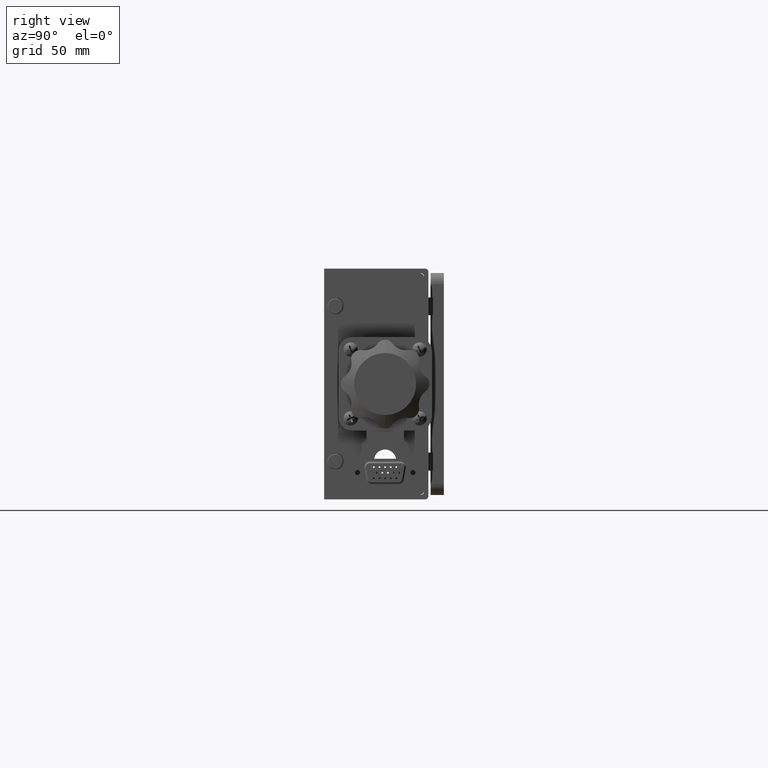
[diagram: clean part render]
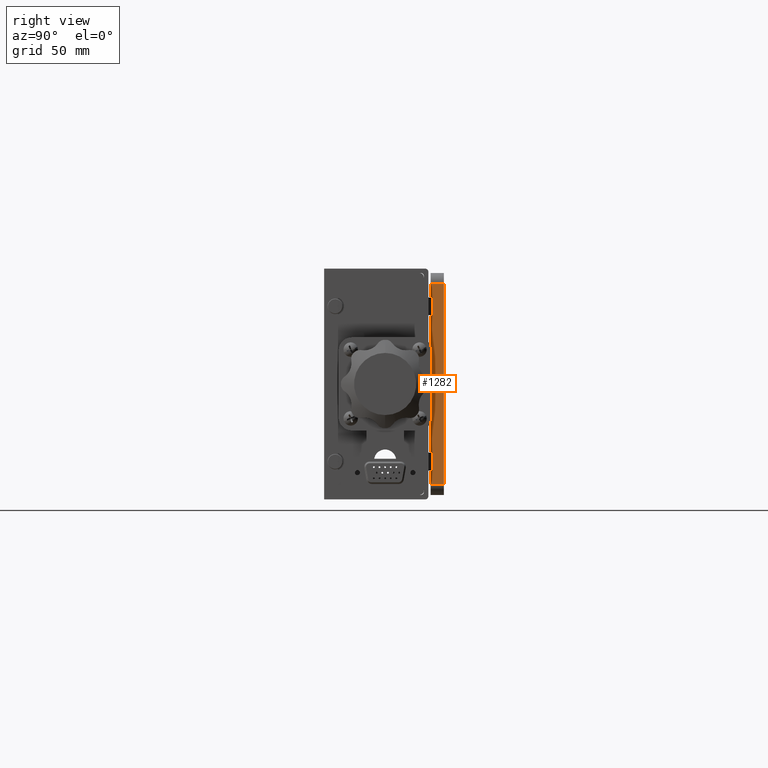
[diagram: same view with one face highlighted and labeled with its STEP entity id]
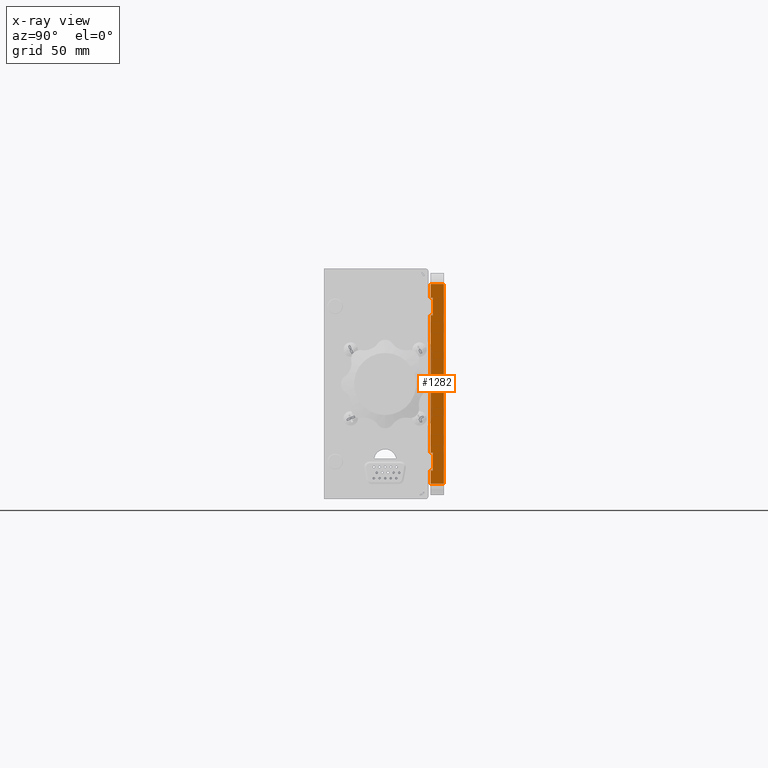
[diagram: x-ray of the same camera — body ghosted, the highlighted face saturated]
A machine part, right view. The second image highlights one B-rep face of the part: STEP entity #1282.
The next image is the same camera in x-ray: the body ghosted, the highlighted face saturated — about 4% of this face is hidden behind the body in this view.
In plain terms, the highlighted planar face has unit normal (-1, 0, 0).
Its self-contained STEP definition (entity closure, byte-faithful):
#672 = VECTOR ( 'NONE', #23466, 1000.000000000000000 ) ;
#790 = CARTESIAN_POINT ( 'NONE',  ( -11.95563374086459900, 47.99999999999991500, -45.00000000000000700 ) ) ;
#1282 = ADVANCED_FACE ( 'NONE', ( #12565 ), #28844, .F. ) ;
#1474 = VECTOR ( 'NONE', #34609, 1000.000000000000000 ) ;
#1556 = VECTOR ( 'NONE', #17116, 1000.000000000000000 ) ;
#2768 = VERTEX_POINT ( 'NONE', #27344 ) ;
#3852 = EDGE_CURVE ( 'NONE', #25508, #34749, #6626, .T. ) ;
#3880 = CARTESIAN_POINT ( 'NONE',  ( -11.95563374086459900, 47.99999999999991500, -31.00000000000006400 ) ) ;
#3921 = LINE ( 'NONE', #15840, #17591 ) ;
#4243 = DIRECTION ( 'NONE',  ( 0.0000000000000000000, 0.0000000000000000000, 1.000000000000000000 ) ) ;
#4479 = EDGE_LOOP ( 'NONE', ( #30036, #6634, #8464, #12476, #6976, #23825, #16924, #23835, #22769, #30285, #31374, #17634 ) ) ;
#5179 = CARTESIAN_POINT ( 'NONE',  ( -11.95563374086459900, 47.99999999999991500, 39.00000000000000700 ) ) ;
#5906 = VERTEX_POINT ( 'NONE', #19328 ) ;
#6050 = CARTESIAN_POINT ( 'NONE',  ( -11.95563374086459900, 47.99999999999991500, -31.00000000000006400 ) ) ;
#6531 = VECTOR ( 'NONE', #9790, 1000.000000000000000 ) ;
#6626 = LINE ( 'NONE', #5179, #21172 ) ;
#6634 = ORIENTED_EDGE ( 'NONE', *, *, #33231, .T. ) ;
#6976 = ORIENTED_EDGE ( 'NONE', *, *, #3852, .T. ) ;
#7744 = VERTEX_POINT ( 'NONE', #28018 ) ;
#7833 = EDGE_CURVE ( 'NONE', #17191, #10369, #9230, .T. ) ;
#8170 = LINE ( 'NONE', #10863, #21861 ) ;
#8274 = VECTOR ( 'NONE', #27830, 1000.000000000000000 ) ;
#8464 = ORIENTED_EDGE ( 'NONE', *, *, #35121, .T. ) ;
#8567 = CARTESIAN_POINT ( 'NONE',  ( -11.95563374086459900, 48.99999999999992200, 31.00000000000006400 ) ) ;
#8718 = CARTESIAN_POINT ( 'NONE',  ( -11.95563374086459900, 48.99999999999992200, -39.00000000000006400 ) ) ;
#9230 = LINE ( 'NONE', #3880, #22907 ) ;
#9381 = DIRECTION ( 'NONE',  ( -0.0000000000000000000, -0.0000000000000000000, -1.000000000000000000 ) ) ;
#9491 = VERTEX_POINT ( 'NONE', #21045 ) ;
#9753 = CARTESIAN_POINT ( 'NONE',  ( -11.95563374086459900, 48.99999999999992200, 39.00000000000000700 ) ) ;
#9790 = DIRECTION ( 'NONE',  ( 0.0000000000000000000, -1.000000000000000000, 0.0000000000000000000 ) ) ;
#9834 = CARTESIAN_POINT ( 'NONE',  ( -11.95563374086459900, 48.99999999999992200, 39.00000000000000700 ) ) ;
#10359 = VECTOR ( 'NONE', #17290, 1000.000000000000000 ) ;
#10369 = VERTEX_POINT ( 'NONE', #6050 ) ;
#10661 = DIRECTION ( 'NONE',  ( -0.0000000000000000000, 1.000000000000000000, -0.0000000000000000000 ) ) ;
#10863 = CARTESIAN_POINT ( 'NONE',  ( -11.95563374086459900, 47.99999999999991500, 45.00000000000001400 ) ) ;
#12476 = ORIENTED_EDGE ( 'NONE', *, *, #24415, .T. ) ;
#12498 = VERTEX_POINT ( 'NONE', #20708 ) ;
#12565 = FACE_OUTER_BOUND ( 'NONE', #4479, .T. ) ;
#12993 = LINE ( 'NONE', #16021, #27554 ) ;
#13012 = EDGE_CURVE ( 'NONE', #5906, #30738, #28351, .T. ) ;
#13029 = CARTESIAN_POINT ( 'NONE',  ( -11.95563374086459900, 47.99999999999991500, -39.00000000000006400 ) ) ;
#13449 = DIRECTION ( 'NONE',  ( 0.0000000000000000000, -1.000000000000000000, 0.0000000000000000000 ) ) ;
#14537 = CARTESIAN_POINT ( 'NONE',  ( -11.95563374086459900, 47.99999999999991500, -50.00000000000000700 ) ) ;
#14852 = DIRECTION ( 'NONE',  ( -1.000000000000000000, 0.0000000000000000000, 0.0000000000000000000 ) ) ;
#15189 = LINE ( 'NONE', #9834, #672 ) ;
#15254 = EDGE_CURVE ( 'NONE', #2768, #5906, #22804, .T. ) ;
#15840 = CARTESIAN_POINT ( 'NONE',  ( -11.95563374086459900, 48.99999999999992200, 31.00000000000006400 ) ) ;
#16006 = LINE ( 'NONE', #31720, #1474 ) ;
#16021 = CARTESIAN_POINT ( 'NONE',  ( -11.95563374086459900, 48.99999999999992200, -31.00000000000006400 ) ) ;
#16924 = ORIENTED_EDGE ( 'NONE', *, *, #27024, .T. ) ;
#17116 = DIRECTION ( 'NONE',  ( 0.0000000000000000000, 1.000000000000000000, 0.0000000000000000000 ) ) ;
#17191 = VERTEX_POINT ( 'NONE', #24355 ) ;
#17290 = DIRECTION ( 'NONE',  ( -0.0000000000000000000, -0.0000000000000000000, -1.000000000000000000 ) ) ;
#17591 = VECTOR ( 'NONE', #29474, 1000.000000000000000 ) ;
#17634 = ORIENTED_EDGE ( 'NONE', *, *, #13012, .T. ) ;
#18704 = CARTESIAN_POINT ( 'NONE',  ( -11.95563374086459900, 47.99999999999991500, 39.00000000000001400 ) ) ;
#19175 = VERTEX_POINT ( 'NONE', #9753 ) ;
#19258 = EDGE_CURVE ( 'NONE', #29735, #17191, #3921, .T. ) ;
#19279 = CARTESIAN_POINT ( 'NONE',  ( -11.95563374086459900, 47.99999999999991500, 39.00000000000000700 ) ) ;
#19328 = CARTESIAN_POINT ( 'NONE',  ( -11.95563374086459900, 48.99999999999992200, -39.00000000000006400 ) ) ;
#19454 = LINE ( 'NONE', #34790, #34021 ) ;
#20708 = CARTESIAN_POINT ( 'NONE',  ( -11.95563374086459900, 53.99999999999992900, 45.00000000000002100 ) ) ;
#21045 = CARTESIAN_POINT ( 'NONE',  ( -11.95563374086459900, 53.99999999999991500, -45.00000000000000700 ) ) ;
#21172 = VECTOR ( 'NONE', #24290, 1000.000000000000000 ) ;
#21861 = VECTOR ( 'NONE', #13449, 1000.000000000000000 ) ;
#22769 = ORIENTED_EDGE ( 'NONE', *, *, #7833, .T. ) ;
#22804 = LINE ( 'NONE', #8718, #8274 ) ;
#22907 = VECTOR ( 'NONE', #9381, 1000.000000000000000 ) ;
#23466 = DIRECTION ( 'NONE',  ( -0.0000000000000000000, 1.000000000000000000, -0.0000000000000000000 ) ) ;
#23775 = DIRECTION ( 'NONE',  ( 0.0000000000000000000, 1.387778780781445400E-016, 1.000000000000000000 ) ) ;
#23825 = ORIENTED_EDGE ( 'NONE', *, *, #33443, .T. ) ;
#23835 = ORIENTED_EDGE ( 'NONE', *, *, #19258, .T. ) ;
#23992 = EDGE_CURVE ( 'NONE', #30738, #7744, #32156, .T. ) ;
#24258 = CARTESIAN_POINT ( 'NONE',  ( -11.95563374086459900, 47.99999999999992200, 45.00000000000001400 ) ) ;
#24290 = DIRECTION ( 'NONE',  ( -0.0000000000000000000, -1.291895883200182000E-015, -1.000000000000000000 ) ) ;
#24355 = CARTESIAN_POINT ( 'NONE',  ( -11.95563374086459900, 47.99999999999991500, 31.00000000000000700 ) ) ;
#24415 = EDGE_CURVE ( 'NONE', #12498, #25508, #8170, .T. ) ;
#25508 = VERTEX_POINT ( 'NONE', #24258 ) ;
#27024 = EDGE_CURVE ( 'NONE', #19175, #29735, #16006, .T. ) ;
#27344 = CARTESIAN_POINT ( 'NONE',  ( -11.95563374086459900, 48.99999999999992200, -31.00000000000006400 ) ) ;
#27554 = VECTOR ( 'NONE', #10661, 1000.000000000000000 ) ;
#27830 = DIRECTION ( 'NONE',  ( -0.0000000000000000000, -0.0000000000000000000, -1.000000000000000000 ) ) ;
#28018 = CARTESIAN_POINT ( 'NONE',  ( -11.95563374086459900, 47.99999999999991500, -45.00000000000000700 ) ) ;
#28351 = LINE ( 'NONE', #31560, #6531 ) ;
#28823 = AXIS2_PLACEMENT_3D ( 'NONE', #18704, #14852, #4243 ) ;
#28844 = PLANE ( 'NONE',  #28823 ) ;
#29474 = DIRECTION ( 'NONE',  ( 0.0000000000000000000, -1.000000000000000000, -5.898059818321144100E-014 ) ) ;
#29735 = VERTEX_POINT ( 'NONE', #8567 ) ;
#29792 = LINE ( 'NONE', #790, #1556 ) ;
#30036 = ORIENTED_EDGE ( 'NONE', *, *, #23992, .T. ) ;
#30285 = ORIENTED_EDGE ( 'NONE', *, *, #30827, .T. ) ;
#30738 = VERTEX_POINT ( 'NONE', #13029 ) ;
#30827 = EDGE_CURVE ( 'NONE', #10369, #2768, #12993, .T. ) ;
#31374 = ORIENTED_EDGE ( 'NONE', *, *, #15254, .T. ) ;
#31560 = CARTESIAN_POINT ( 'NONE',  ( -11.95563374086459900, 48.99999999999992200, -39.00000000000006400 ) ) ;
#31720 = CARTESIAN_POINT ( 'NONE',  ( -11.95563374086459900, 48.99999999999992200, 31.00000000000006400 ) ) ;
#32156 = LINE ( 'NONE', #14537, #10359 ) ;
#33231 = EDGE_CURVE ( 'NONE', #7744, #9491, #29792, .T. ) ;
#33443 = EDGE_CURVE ( 'NONE', #34749, #19175, #15189, .T. ) ;
#34021 = VECTOR ( 'NONE', #23775, 1000.000000000000000 ) ;
#34609 = DIRECTION ( 'NONE',  ( -0.0000000000000000000, -0.0000000000000000000, -1.000000000000000000 ) ) ;
#34749 = VERTEX_POINT ( 'NONE', #19279 ) ;
#34790 = CARTESIAN_POINT ( 'NONE',  ( -11.95563374086459900, 53.99999999999991500, -50.00000000000000700 ) ) ;
#35121 = EDGE_CURVE ( 'NONE', #9491, #12498, #19454, .T. ) ;